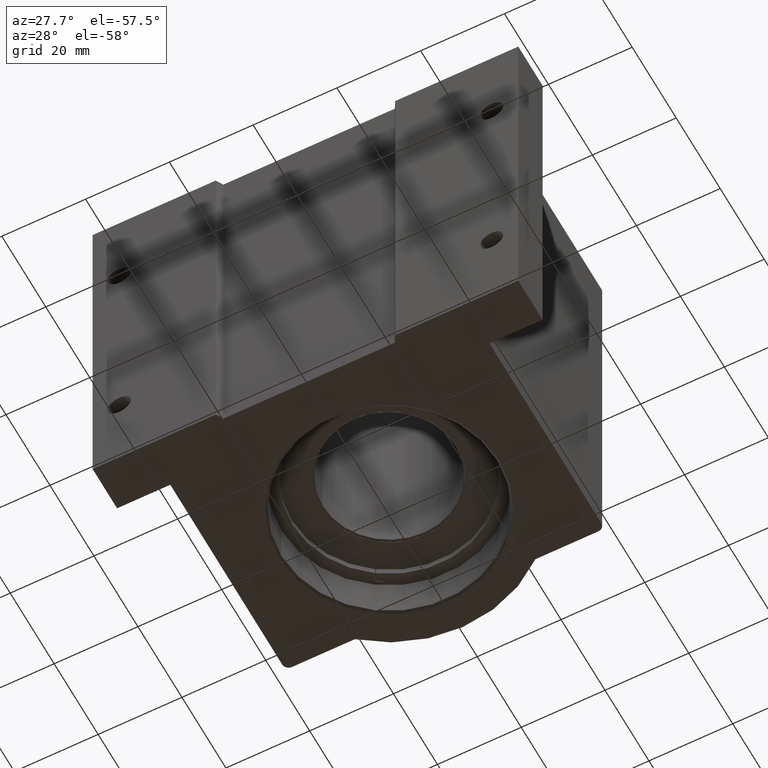
[diagram: clean part render]
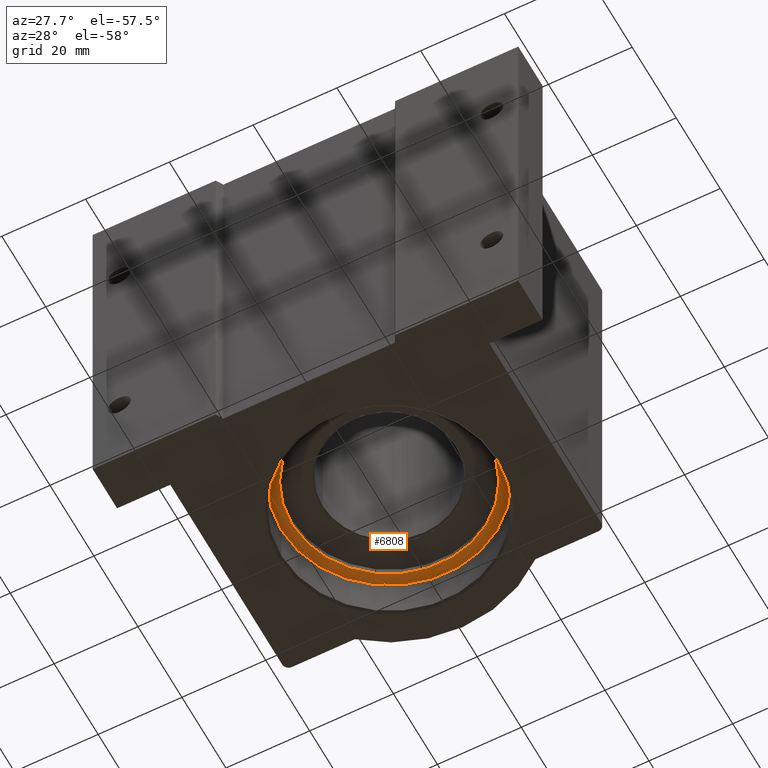
[diagram: same view with one face highlighted and labeled with its STEP entity id]
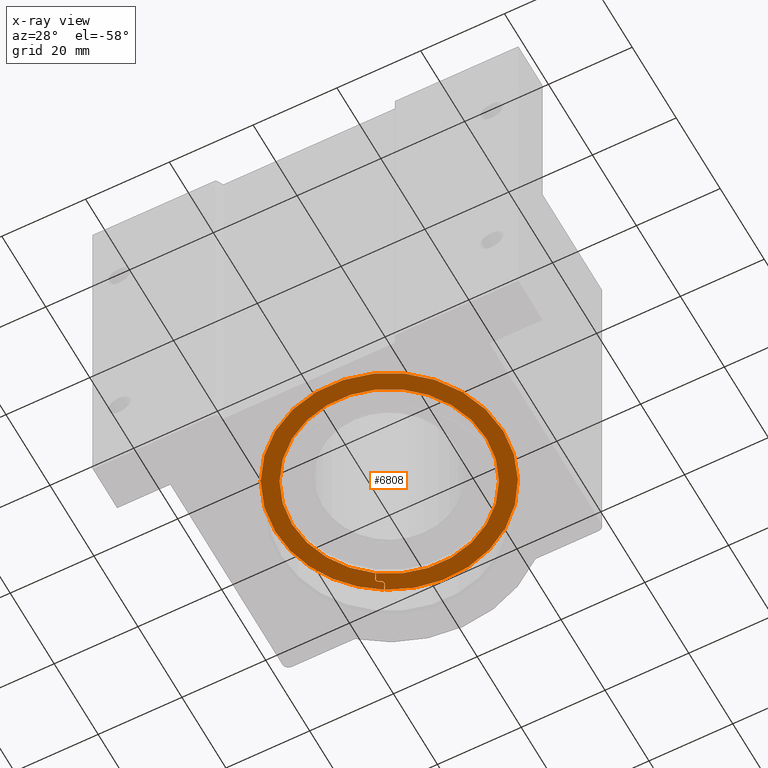
[diagram: x-ray of the same camera — body ghosted, the highlighted face saturated]
A machine part, auxiliary view. The second image highlights one B-rep face of the part: STEP entity #6808.
The next image is the same camera in x-ray: the body ghosted, the highlighted face saturated — about 0% of this face is hidden behind the body in this view.
In plain terms, the highlighted planar face has unit normal (0, 0, -1).
Its self-contained STEP definition (entity closure, byte-faithful):
#6 = DIRECTION ( 'NONE',  ( 0.000000000000000000, 0.000000000000000000, -1.000000000000000000 ) ) ;
#509 = CARTESIAN_POINT ( 'NONE',  ( -0.5416106712659781719, 0.8327638672208319548, -1.378249999999999975 ) ) ;
#527 = CIRCLE ( 'NONE', #5723, 1.070999999999999952 ) ;
#544 = EDGE_CURVE ( 'NONE', #4387, #2571, #7853, .T. ) ;
#568 = CIRCLE ( 'NONE', #5257, 0.02133333333333332915 ) ;
#615 = CARTESIAN_POINT ( 'NONE',  ( -0.5091666666666644359, 0.8819025361871554169, -1.378250000000000197 ) ) ;
#656 = CARTESIAN_POINT ( 'NONE',  ( -0.5547773379326450538, 0.8099585315878414793, -1.378249999999999975 ) ) ;
#681 = DIRECTION ( 'NONE',  ( 0.000000000000000000, -0.000000000000000000, 1.000000000000000000 ) ) ;
#724 = FACE_OUTER_BOUND ( 'NONE', #1186, .T. ) ;
#727 = DIRECTION ( 'NONE',  ( 1.000000000000000000, 0.000000000000000000, 0.000000000000000000 ) ) ;
#808 = CARTESIAN_POINT ( 'NONE',  ( -0.9129999999999999227, 5.996611700655647464E-16, -1.378249999999999975 ) ) ;
#857 = CARTESIAN_POINT ( 'NONE',  ( -0.5311640372816772704, 0.9300030997252806131, -1.378250000000000197 ) ) ;
#873 = DIRECTION ( 'NONE',  ( 0.000000000000000000, 0.000000000000000000, -1.000000000000000000 ) ) ;
#993 = CARTESIAN_POINT ( 'NONE',  ( -0.5163053356329880828, 0.8416004068685762896, -1.378249999999999975 ) ) ;
#995 = VERTEX_POINT ( 'NONE', #7074 ) ;
#1017 = VECTOR ( 'NONE', #6471, 39.37007874015748143 ) ;
#1115 = CARTESIAN_POINT ( 'NONE',  ( -0.5469192132133797735, 0.7992918649211750992, -1.378249999999999975 ) ) ;
#1129 = DIRECTION ( 'NONE',  ( 0.8660254037844438146, 0.4999999999999909517, -1.110223024625136942E-16 ) ) ;
#1131 = VERTEX_POINT ( 'NONE', #4142 ) ;
#1153 = LINE ( 'NONE', #1273, #4941 ) ;
#1186 = EDGE_LOOP ( 'NONE', ( #6830, #3499, #4986, #2545, #3113, #6032, #4502, #7332, #4540, #6457, #5112, #7163, #4660, #6557, #4159, #7998, #5558, #3122 ) ) ;
#1250 = CARTESIAN_POINT ( 'NONE',  ( -0.5091666666666644359, 0.8819025361871554169, -1.378250000000000197 ) ) ;
#1273 = CARTESIAN_POINT ( 'NONE',  ( -0.5048365396477422218, 0.8844025361871553637, -1.378250000000000197 ) ) ;
#1351 = AXIS2_PLACEMENT_3D ( 'NONE', #3626, #7352, #3011 ) ;
#1369 = VERTEX_POINT ( 'NONE', #857 ) ;
#1410 = VERTEX_POINT ( 'NONE', #6645 ) ;
#1435 = CIRCLE ( 'NONE', #5597, 0.03133333333333342824 ) ;
#1445 = CARTESIAN_POINT ( 'NONE',  ( -0.5188053356329881405, 0.8459305338874983926, -1.378249999999999975 ) ) ;
#1491 = CIRCLE ( 'NONE', #4341, 0.02633333333333334400 ) ;
#1553 = EDGE_CURVE ( 'NONE', #7654, #995, #6039, .T. ) ;
#1577 = CARTESIAN_POINT ( 'NONE',  ( 0.000000000000000000, 4.878509173034114859E-16, -1.378249999999999975 ) ) ;
#1616 = CARTESIAN_POINT ( 'NONE',  ( 0.000000000000000000, 4.878509173034114859E-16, -1.378249999999999975 ) ) ;
#1705 = DIRECTION ( 'NONE',  ( -1.000000000000000000, 0.000000000000000000, 0.000000000000000000 ) ) ;
#1715 = DIRECTION ( 'NONE',  ( 0.000000000000000000, -0.000000000000000000, 1.000000000000000000 ) ) ;
#1819 = CARTESIAN_POINT ( 'NONE',  ( -0.5284440045993115120, 0.8099585315878414793, -1.378249999999999975 ) ) ;
#1855 = DIRECTION ( 'NONE',  ( -0.4999999999999968359, 0.8660254037844403729, -1.922962686383568747E-16 ) ) ;
#1861 = EDGE_CURVE ( 'NONE', #5735, #5099, #1491, .T. ) ;
#1879 = EDGE_CURVE ( 'NONE', #4181, #1131, #2572, .T. ) ;
#1880 = VECTOR ( 'NONE', #1855, 39.37007874015748143 ) ;
#1908 = CARTESIAN_POINT ( 'NONE',  ( -0.5319720022996546893, 0.8687358695204887571, -1.378250000000000197 ) ) ;
#1970 = LINE ( 'NONE', #2140, #1017 ) ;
#2042 = CARTESIAN_POINT ( 'NONE',  ( -0.5284440045993115120, 0.8099585315878414793, -1.378249999999999975 ) ) ;
#2075 = CARTESIAN_POINT ( 'NONE',  ( -0.5232038695338457890, 0.7482156847492646978, -1.378249999999999975 ) ) ;
#2095 = CIRCLE ( 'NONE', #5350, 0.9129999999999999227 ) ;
#2111 = DIRECTION ( 'NONE',  ( -0.4999999999999972244, 0.8660254037844402619, -1.922962686383567761E-16 ) ) ;
#2140 = CARTESIAN_POINT ( 'NONE',  ( -0.5469192132133797735, 0.7992918649211750992, -1.378249999999999975 ) ) ;
#2231 = EDGE_CURVE ( 'NONE', #5099, #995, #7447, .T. ) ;
#2303 = DIRECTION ( 'NONE',  ( -1.000000000000000000, 0.000000000000000000, 0.000000000000000000 ) ) ;
#2542 = CARTESIAN_POINT ( 'NONE',  ( -0.5048365396477422218, 0.8844025361871553637, -1.378250000000000197 ) ) ;
#2545 = ORIENTED_EDGE ( 'NONE', *, *, #544, .F. ) ;
#2571 = VERTEX_POINT ( 'NONE', #509 ) ;
#2572 = LINE ( 'NONE', #4281, #6968 ) ;
#2708 = CIRCLE ( 'NONE', #4550, 0.02133333333333332915 ) ;
#2764 = VERTEX_POINT ( 'NONE', #1115 ) ;
#2799 = CARTESIAN_POINT ( 'NONE',  ( -0.5284440045993115120, 0.8099585315878414793, -1.378249999999999975 ) ) ;
#2845 = DIRECTION ( 'NONE',  ( -1.000000000000000000, 0.000000000000000000, 0.000000000000000000 ) ) ;
#2871 = DIRECTION ( 'NONE',  ( 0.000000000000000000, 0.000000000000000000, -1.000000000000000000 ) ) ;
#2916 = AXIS2_PLACEMENT_3D ( 'NONE', #3845, #6, #5559 ) ;
#2938 = AXIS2_PLACEMENT_3D ( 'NONE', #6763, #3149, #3685 ) ;
#2987 = CIRCLE ( 'NONE', #7561, 0.02633333333333347931 ) ;
#3011 = DIRECTION ( 'NONE',  ( -1.000000000000000000, 0.000000000000000000, 0.000000000000000000 ) ) ;
#3075 = DIRECTION ( 'NONE',  ( -1.000000000000000000, 0.000000000000000000, 0.000000000000000000 ) ) ;
#3113 = ORIENTED_EDGE ( 'NONE', *, *, #6332, .F. ) ;
#3122 = ORIENTED_EDGE ( 'NONE', *, *, #1553, .T. ) ;
#3149 = DIRECTION ( 'NONE',  ( 0.000000000000000000, 0.000000000000000000, -1.000000000000000000 ) ) ;
#3242 = LINE ( 'NONE', #5212, #4155 ) ;
#3345 = DIRECTION ( 'NONE',  ( -1.000000000000000000, 0.000000000000000000, 0.000000000000000000 ) ) ;
#3488 = CARTESIAN_POINT ( 'NONE',  ( 0.000000000000000000, 4.878509173034114859E-16, -1.378249999999999975 ) ) ;
#3499 = ORIENTED_EDGE ( 'NONE', *, *, #1861, .F. ) ;
#3576 = EDGE_CURVE ( 'NONE', #2571, #5735, #4210, .T. ) ;
#3602 = CIRCLE ( 'NONE', #2938, 1.070999999999999952 ) ;
#3610 = DIRECTION ( 'NONE',  ( 0.000000000000000000, 0.000000000000000000, -1.000000000000000000 ) ) ;
#3626 = CARTESIAN_POINT ( 'NONE',  ( -0.5284440045993115120, 0.8099585315878414793, -1.378249999999999975 ) ) ;
#3673 = EDGE_CURVE ( 'NONE', #7398, #7654, #3602, .T. ) ;
#3685 = DIRECTION ( 'NONE',  ( -1.000000000000000000, 0.000000000000000000, 0.000000000000000000 ) ) ;
#3784 = EDGE_CURVE ( 'NONE', #2764, #6284, #1970, .T. ) ;
#3845 = CARTESIAN_POINT ( 'NONE',  ( 0.000000000000000000, 4.878509173034114859E-16, -1.378249999999999975 ) ) ;
#3917 = CIRCLE ( 'NONE', #6809, 0.9129999999999999227 ) ;
#3990 = DIRECTION ( 'NONE',  ( -1.000000000000000000, 0.000000000000000000, 0.000000000000000000 ) ) ;
#4094 = DIRECTION ( 'NONE',  ( -1.000000000000000000, 0.000000000000000000, 0.000000000000000000 ) ) ;
#4142 = CARTESIAN_POINT ( 'NONE',  ( -0.5391106712659781142, 0.8284337402019095187, -1.378249999999999975 ) ) ;
#4155 = VECTOR ( 'NONE', #2111, 39.37007874015748143 ) ;
#4159 = ORIENTED_EDGE ( 'NONE', *, *, #5129, .F. ) ;
#4181 = VERTEX_POINT ( 'NONE', #993 ) ;
#4210 = LINE ( 'NONE', #6726, #5041 ) ;
#4281 = CARTESIAN_POINT ( 'NONE',  ( -0.5163053356329879717, 0.8416004068685761785, -1.378249999999999975 ) ) ;
#4309 = AXIS2_PLACEMENT_3D ( 'NONE', #1616, #7248, #2303 ) ;
#4341 = AXIS2_PLACEMENT_3D ( 'NONE', #5312, #7804, #7241 ) ;
#4387 = VERTEX_POINT ( 'NONE', #656 ) ;
#4396 = DIRECTION ( 'NONE',  ( 0.4999999999999965583, -0.8660254037844404840, 1.922962686383568254E-16 ) ) ;
#4502 = ORIENTED_EDGE ( 'NONE', *, *, #6819, .F. ) ;
#4528 = DIRECTION ( 'NONE',  ( 0.000000000000000000, 0.000000000000000000, -1.000000000000000000 ) ) ;
#4540 = ORIENTED_EDGE ( 'NONE', *, *, #6624, .F. ) ;
#4550 = AXIS2_PLACEMENT_3D ( 'NONE', #2799, #1715, #2845 ) ;
#4660 = ORIENTED_EDGE ( 'NONE', *, *, #1879, .F. ) ;
#4825 = VERTEX_POINT ( 'NONE', #2542 ) ;
#4852 = DIRECTION ( 'NONE',  ( 0.000000000000000000, 0.000000000000000000, -1.000000000000000000 ) ) ;
#4941 = VECTOR ( 'NONE', #4396, 39.37007874015748854 ) ;
#4986 = ORIENTED_EDGE ( 'NONE', *, *, #3576, .F. ) ;
#5041 = VECTOR ( 'NONE', #1129, 39.37007874015748143 ) ;
#5046 = EDGE_CURVE ( 'NONE', #1131, #1410, #2708, .T. ) ;
#5098 = CARTESIAN_POINT ( 'NONE',  ( -0.5190839567990592762, 0.7510797865698645159, -1.378249999999999975 ) ) ;
#5099 = VERTEX_POINT ( 'NONE', #615 ) ;
#5112 = ORIENTED_EDGE ( 'NONE', *, *, #7763, .F. ) ;
#5129 = EDGE_CURVE ( 'NONE', #1369, #4825, #1153, .T. ) ;
#5212 = CARTESIAN_POINT ( 'NONE',  ( -0.5512493402323017655, 0.7967918649211750415, -1.378249999999999975 ) ) ;
#5238 = VERTEX_POINT ( 'NONE', #2075 ) ;
#5257 = AXIS2_PLACEMENT_3D ( 'NONE', #1819, #681, #6805 ) ;
#5312 = CARTESIAN_POINT ( 'NONE',  ( -0.5319720022996546893, 0.8687358695204887571, -1.378250000000000197 ) ) ;
#5350 = AXIS2_PLACEMENT_3D ( 'NONE', #5366, #2871, #1705 ) ;
#5366 = CARTESIAN_POINT ( 'NONE',  ( 0.000000000000000000, 4.878509173034114859E-16, -1.378249999999999975 ) ) ;
#5460 = EDGE_CURVE ( 'NONE', #4825, #4181, #1435, .T. ) ;
#5489 = EDGE_CURVE ( 'NONE', #5238, #7306, #3242, .T. ) ;
#5558 = ORIENTED_EDGE ( 'NONE', *, *, #3673, .T. ) ;
#5559 = DIRECTION ( 'NONE',  ( -1.000000000000000000, 0.000000000000000000, 0.000000000000000000 ) ) ;
#5597 = AXIS2_PLACEMENT_3D ( 'NONE', #1908, #4852, #727 ) ;
#5615 = EDGE_CURVE ( 'NONE', #1369, #7398, #527, .T. ) ;
#5722 = CIRCLE ( 'NONE', #8073, 0.9129999999999999227 ) ;
#5723 = AXIS2_PLACEMENT_3D ( 'NONE', #3488, #3610, #3075 ) ;
#5735 = VERTEX_POINT ( 'NONE', #1445 ) ;
#6032 = ORIENTED_EDGE ( 'NONE', *, *, #5489, .F. ) ;
#6039 = CIRCLE ( 'NONE', #2916, 1.070999999999999952 ) ;
#6284 = VERTEX_POINT ( 'NONE', #5098 ) ;
#6313 = EDGE_CURVE ( 'NONE', #7636, #6780, #5722, .T. ) ;
#6332 = EDGE_CURVE ( 'NONE', #7306, #4387, #2987, .T. ) ;
#6457 = ORIENTED_EDGE ( 'NONE', *, *, #3784, .F. ) ;
#6471 = DIRECTION ( 'NONE',  ( 0.4999999999999994449, -0.8660254037844389297, 1.922962686383565049E-16 ) ) ;
#6557 = ORIENTED_EDGE ( 'NONE', *, *, #5460, .F. ) ;
#6624 = EDGE_CURVE ( 'NONE', #6284, #7636, #2095, .T. ) ;
#6645 = CARTESIAN_POINT ( 'NONE',  ( -0.5497773379326449383, 0.8099585315878414793, -1.378249999999999975 ) ) ;
#6726 = CARTESIAN_POINT ( 'NONE',  ( -0.5188053356329881405, 0.8459305338874983926, -1.378249999999999975 ) ) ;
#6729 = CARTESIAN_POINT ( 'NONE',  ( 0.9129999999999999227, 4.878509173034114859E-16, -1.378249999999999975 ) ) ;
#6763 = CARTESIAN_POINT ( 'NONE',  ( 0.000000000000000000, 4.878509173034114859E-16, -1.378249999999999975 ) ) ;
#6780 = VERTEX_POINT ( 'NONE', #808 ) ;
#6796 = DIRECTION ( 'NONE',  ( -0.8660254037844385966, -0.4999999999999998335, 1.110223024625156294E-16 ) ) ;
#6805 = DIRECTION ( 'NONE',  ( -1.000000000000000000, 0.000000000000000000, 0.000000000000000000 ) ) ;
#6808 = ADVANCED_FACE ( 'NONE', ( #724 ), #7618, .T. ) ;
#6809 = AXIS2_PLACEMENT_3D ( 'NONE', #1577, #7734, #4094 ) ;
#6816 = CARTESIAN_POINT ( 'NONE',  ( 1.070999999999999952, 4.878509173034114859E-16, -1.378249999999999975 ) ) ;
#6819 = EDGE_CURVE ( 'NONE', #6780, #5238, #3917, .T. ) ;
#6830 = ORIENTED_EDGE ( 'NONE', *, *, #2231, .F. ) ;
#6968 = VECTOR ( 'NONE', #6796, 39.37007874015748854 ) ;
#7074 = CARTESIAN_POINT ( 'NONE',  ( -0.5354999999999975335, 0.9275132074531357018, -1.378250000000000197 ) ) ;
#7163 = ORIENTED_EDGE ( 'NONE', *, *, #5046, .F. ) ;
#7241 = DIRECTION ( 'NONE',  ( 1.000000000000000000, 0.000000000000000000, 0.000000000000000000 ) ) ;
#7248 = DIRECTION ( 'NONE',  ( 0.000000000000000000, 0.000000000000000000, -1.000000000000000000 ) ) ;
#7306 = VERTEX_POINT ( 'NONE', #7826 ) ;
#7332 = ORIENTED_EDGE ( 'NONE', *, *, #6313, .F. ) ;
#7352 = DIRECTION ( 'NONE',  ( 0.000000000000000000, 0.000000000000000000, -1.000000000000000000 ) ) ;
#7398 = VERTEX_POINT ( 'NONE', #6816 ) ;
#7447 = LINE ( 'NONE', #1250, #1880 ) ;
#7561 = AXIS2_PLACEMENT_3D ( 'NONE', #2042, #4528, #3990 ) ;
#7590 = CARTESIAN_POINT ( 'NONE',  ( 0.000000000000000000, 4.878509173034114859E-16, -1.378249999999999975 ) ) ;
#7618 = PLANE ( 'NONE',  #4309 ) ;
#7636 = VERTEX_POINT ( 'NONE', #6729 ) ;
#7654 = VERTEX_POINT ( 'NONE', #7975 ) ;
#7734 = DIRECTION ( 'NONE',  ( 0.000000000000000000, 0.000000000000000000, -1.000000000000000000 ) ) ;
#7763 = EDGE_CURVE ( 'NONE', #1410, #2764, #568, .T. ) ;
#7804 = DIRECTION ( 'NONE',  ( 0.000000000000000000, -0.000000000000000000, 1.000000000000000000 ) ) ;
#7826 = CARTESIAN_POINT ( 'NONE',  ( -0.5512493402323017655, 0.7967918649211750415, -1.378249999999999975 ) ) ;
#7853 = CIRCLE ( 'NONE', #1351, 0.02633333333333347931 ) ;
#7975 = CARTESIAN_POINT ( 'NONE',  ( -1.070999999999999952, 6.190105894920929581E-16, -1.378249999999999975 ) ) ;
#7998 = ORIENTED_EDGE ( 'NONE', *, *, #5615, .T. ) ;
#8073 = AXIS2_PLACEMENT_3D ( 'NONE', #7590, #873, #3345 ) ;